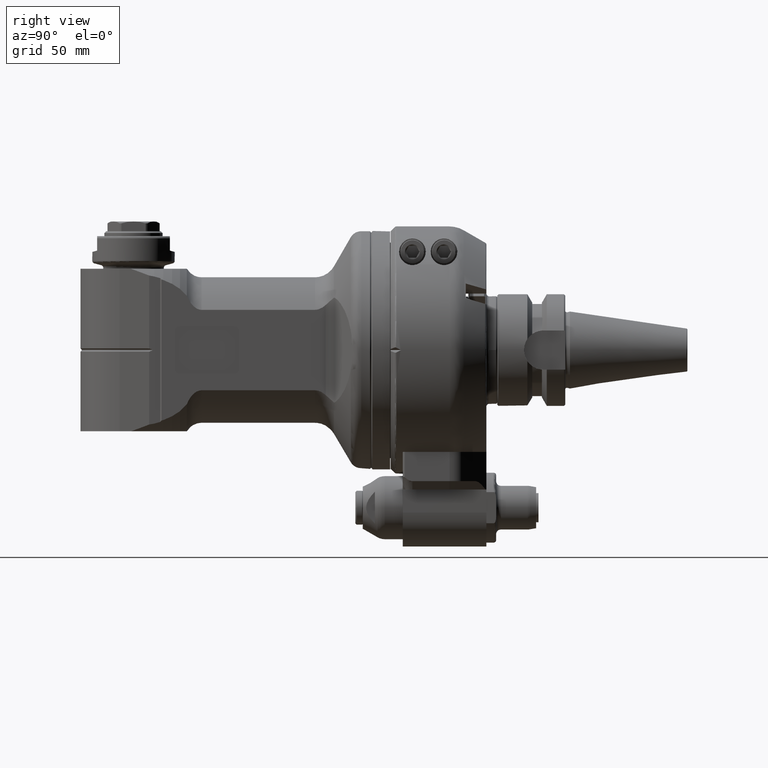
[diagram: clean part render]
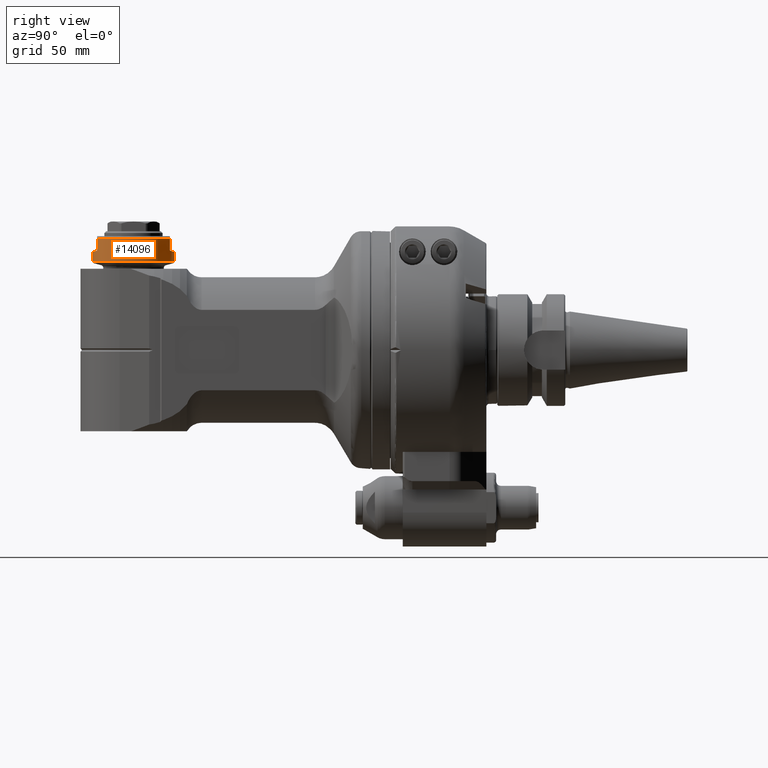
[diagram: same view with one face highlighted and labeled with its STEP entity id]
A machine part, right view. The second image highlights one B-rep face of the part: STEP entity #14096.
In plain terms, the highlighted cylindrical surface (bore or boss wall) has radius 17 mm, axis along (0, -0, 1).
Its self-contained STEP definition (entity closure, byte-faithful):
#135=ELLIPSE('',#15673,17.5996950669713,17.);
#136=ELLIPSE('',#15674,17.5996950669713,17.);
#1179=CYLINDRICAL_SURFACE('',#15671,17.);
#1878=FACE_OUTER_BOUND('',#2865,.T.);
#2865=EDGE_LOOP('',(#12121,#12122,#12123,#12124,#12125,#12126,#12127,#12128,
#12129,#12130,#12131,#12132,#12133));
#3788=CIRCLE('',#15669,17.);
#3789=CIRCLE('',#15672,17.);
#3790=CIRCLE('',#15675,17.);
#3791=CIRCLE('',#15676,17.);
#3792=CIRCLE('',#15677,17.);
#4659=LINE('',#54271,#5533);
#4660=LINE('',#54285,#5534);
#4662=LINE('',#54292,#5536);
#4663=LINE('',#54296,#5537);
#4664=LINE('',#54299,#5538);
#5533=VECTOR('',#19310,5.000000000003);
#5534=VECTOR('',#19311,5.000000000003);
#5536=VECTOR('',#19319,5.);
#5537=VECTOR('',#19322,5.);
#5538=VECTOR('',#19325,17.);
#6749=VERTEX_POINT('',#54241);
#6750=VERTEX_POINT('',#54254);
#6751=VERTEX_POINT('',#54269);
#6752=VERTEX_POINT('',#54270);
#6753=VERTEX_POINT('',#54284);
#6754=VERTEX_POINT('',#54288);
#6755=VERTEX_POINT('',#54291);
#6756=VERTEX_POINT('',#54293);
#6757=VERTEX_POINT('',#54295);
#6758=VERTEX_POINT('',#54298);
#6759=VERTEX_POINT('',#54300);
#8611=EDGE_CURVE('',#6749,#6750,#3788,.T.);
#8613=EDGE_CURVE('',#6751,#6752,#4659,.T.);
#8615=EDGE_CURVE('',#6753,#6750,#4660,.T.);
#8617=EDGE_CURVE('',#6751,#6754,#3789,.T.);
#8618=EDGE_CURVE('',#6752,#6753,#135,.T.);
#8619=EDGE_CURVE('',#6749,#6755,#4662,.T.);
#8620=EDGE_CURVE('',#6756,#6755,#136,.T.);
#8621=EDGE_CURVE('',#6756,#6757,#4663,.T.);
#8622=EDGE_CURVE('',#6754,#6757,#3790,.T.);
#8623=EDGE_CURVE('',#6754,#6758,#4664,.T.);
#8624=EDGE_CURVE('',#6759,#6758,#3791,.T.);
#8625=EDGE_CURVE('',#6758,#6759,#3792,.T.);
#12121=ORIENTED_EDGE('',*,*,#8617,.F.);
#12122=ORIENTED_EDGE('',*,*,#8613,.T.);
#12123=ORIENTED_EDGE('',*,*,#8618,.T.);
#12124=ORIENTED_EDGE('',*,*,#8615,.T.);
#12125=ORIENTED_EDGE('',*,*,#8611,.F.);
#12126=ORIENTED_EDGE('',*,*,#8619,.T.);
#12127=ORIENTED_EDGE('',*,*,#8620,.F.);
#12128=ORIENTED_EDGE('',*,*,#8621,.T.);
#12129=ORIENTED_EDGE('',*,*,#8622,.F.);
#12130=ORIENTED_EDGE('',*,*,#8623,.T.);
#12131=ORIENTED_EDGE('',*,*,#8624,.F.);
#12132=ORIENTED_EDGE('',*,*,#8625,.F.);
#12133=ORIENTED_EDGE('',*,*,#8623,.F.);
#14096=ADVANCED_FACE('',(#1878),#1179,.T.);
#15669=AXIS2_PLACEMENT_3D('',#54255,#19306,#19307);
#15671=AXIS2_PLACEMENT_3D('',#54287,#19313,#19314);
#15672=AXIS2_PLACEMENT_3D('',#54289,#19315,#19316);
#15673=AXIS2_PLACEMENT_3D('',#54290,#19317,#19318);
#15674=AXIS2_PLACEMENT_3D('',#54294,#19320,#19321);
#15675=AXIS2_PLACEMENT_3D('',#54297,#19323,#19324);
#15676=AXIS2_PLACEMENT_3D('',#54301,#19326,#19327);
#15677=AXIS2_PLACEMENT_3D('',#54302,#19328,#19329);
#19306=DIRECTION('center_axis',(0.,-1.,0.));
#19307=DIRECTION('ref_axis',(0.,0.,1.));
#19310=DIRECTION('',(0.,1.,0.));
#19311=DIRECTION('',(0.,-1.,0.));
#19313=DIRECTION('center_axis',(0.,-1.,0.));
#19314=DIRECTION('ref_axis',(0.,0.,1.));
#19315=DIRECTION('center_axis',(0.,-1.,0.));
#19316=DIRECTION('ref_axis',(-0.882352941176485,0.,-0.470588235294092));
#19317=DIRECTION('center_axis',(0.258819045102493,0.965925826289076,0.));
#19318=DIRECTION('ref_axis',(-0.965925826289076,0.258819045102493,0.));
#19319=DIRECTION('',(0.,1.,0.));
#19320=DIRECTION('center_axis',(0.258819045102493,-0.965925826289076,0.));
#19321=DIRECTION('ref_axis',(-0.965925826289076,-0.258819045102493,0.));
#19322=DIRECTION('',(0.,-1.,0.));
#19323=DIRECTION('center_axis',(0.,-1.,0.));
#19324=DIRECTION('ref_axis',(-0.882352941176485,0.,-0.470588235294092));
#19325=DIRECTION('',(0.,1.,0.));
#19326=DIRECTION('center_axis',(0.,1.,0.));
#19327=DIRECTION('ref_axis',(-1.,0.,0.));
#19328=DIRECTION('center_axis',(0.,1.,0.));
#19329=DIRECTION('ref_axis',(-1.,0.,0.));
#54241=CARTESIAN_POINT('',(124.9999999553,-46.,8.));
#54254=CARTESIAN_POINT('',(94.99999995534,-46.,8.));
#54255=CARTESIAN_POINT('Origin',(109.9999999553,-46.,0.));
#54269=CARTESIAN_POINT('',(94.99999995534,-46.,-8.));
#54270=CARTESIAN_POINT('',(94.99999995534,-41.,-8.));
#54271=CARTESIAN_POINT('',(94.99999995534,-46.,-8.));
#54284=CARTESIAN_POINT('',(94.99999995534,-41.,8.));
#54285=CARTESIAN_POINT('',(94.99999995534,-41.,8.));
#54287=CARTESIAN_POINT('Origin',(109.9999999553,-40.5,0.));
#54288=CARTESIAN_POINT('',(109.9999999553,-46.,-17.));
#54289=CARTESIAN_POINT('Origin',(109.9999999553,-46.,0.));
#54290=CARTESIAN_POINT('Origin',(109.9999999553,-45.0192378864536,0.));
#54291=CARTESIAN_POINT('',(124.9999999553,-41.,8.));
#54292=CARTESIAN_POINT('',(124.9999999553,-46.,8.));
#54293=CARTESIAN_POINT('',(124.9999999553,-41.,-8.));
#54294=CARTESIAN_POINT('Origin',(109.9999999553,-45.0192378864664,0.));
#54295=CARTESIAN_POINT('',(124.9999999553,-46.,-8.));
#54296=CARTESIAN_POINT('',(124.9999999553,-41.,-8.));
#54297=CARTESIAN_POINT('Origin',(109.9999999553,-46.,0.));
#54298=CARTESIAN_POINT('',(109.9999999553,-36.74042535392,-17.));
#54299=CARTESIAN_POINT('',(109.9999999553,-40.5,-17.));
#54300=CARTESIAN_POINT('',(126.9999999553,-36.74042535392,2.0818995585505E-15));
#54301=CARTESIAN_POINT('Origin',(109.9999999553,-36.74042535392,0.));
#54302=CARTESIAN_POINT('Origin',(109.9999999553,-36.74042535392,0.));